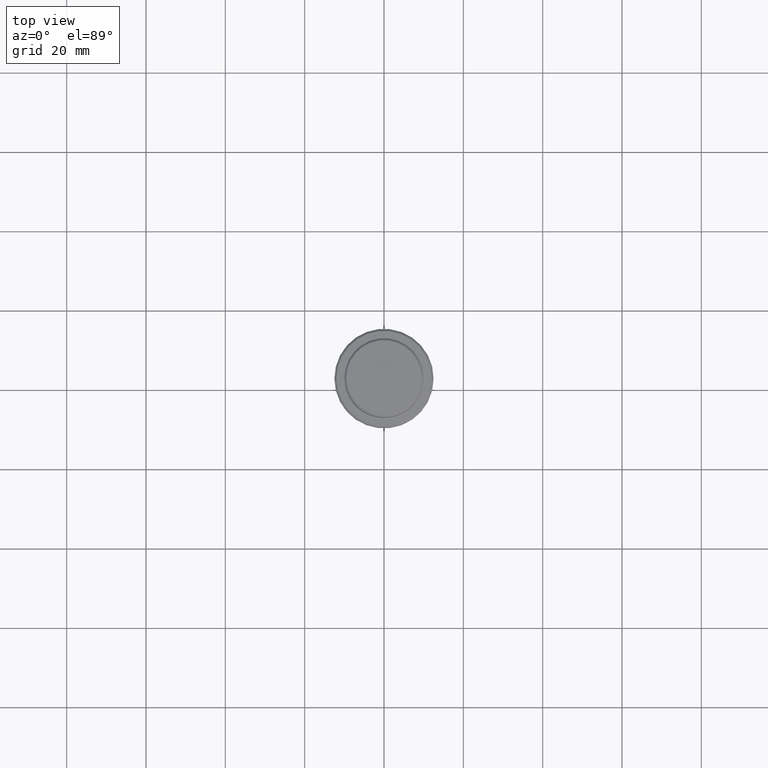
[diagram: clean part render]
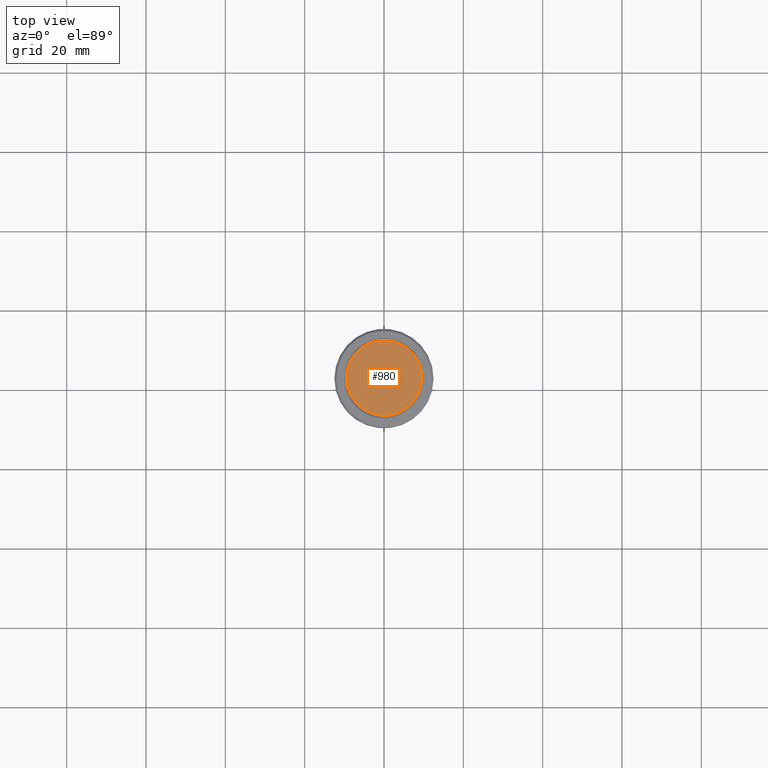
[diagram: same view with one face highlighted and labeled with its STEP entity id]
A machine part, top view. The second image highlights one B-rep face of the part: STEP entity #980.
In plain terms, the highlighted planar face has unit normal (0, -0, 1).
Its self-contained STEP definition (entity closure, byte-faithful):
#61 = DIRECTION ( 'NONE',  ( -0.000000000000000000, -0.000000000000000000, 1.000000000000000000 ) ) ;
#105 = DIRECTION ( 'NONE',  ( -0.000000000000000000, -0.000000000000000000, 1.000000000000000000 ) ) ;
#305 = CIRCLE ( 'NONE', #1083, 9.500000000000063949 ) ;
#317 = VERTEX_POINT ( 'NONE', #650 ) ;
#319 = DIRECTION ( 'NONE',  ( 0.000000000000000000, -0.000000000000000000, 1.000000000000000000 ) ) ;
#354 = DIRECTION ( 'NONE',  ( 1.000000000000000000, 0.000000000000000000, 0.000000000000000000 ) ) ;
#395 = AXIS2_PLACEMENT_3D ( 'NONE', #992, #319, #1190 ) ;
#537 = PLANE ( 'NONE',  #395 ) ;
#539 = ORIENTED_EDGE ( 'NONE', *, *, #921, .T. ) ;
#650 = CARTESIAN_POINT ( 'NONE',  ( 9.500000000000063949, 1.194030629168673217E-15, 0.000000000000000000 ) ) ;
#689 = CIRCLE ( 'NONE', #1392, 9.500000000000063949 ) ;
#757 = FACE_OUTER_BOUND ( 'NONE', #1053, .T. ) ;
#921 = EDGE_CURVE ( 'NONE', #317, #1178, #689, .T. ) ;
#967 = ORIENTED_EDGE ( 'NONE', *, *, #1395, .T. ) ;
#980 = ADVANCED_FACE ( 'NONE', ( #757 ), #537, .T. ) ;
#992 = CARTESIAN_POINT ( 'NONE',  ( 0.000000000000000000, 0.000000000000000000, 0.000000000000000000 ) ) ;
#1048 = CARTESIAN_POINT ( 'NONE',  ( 0.000000000000000000, 0.000000000000000000, 0.000000000000000000 ) ) ;
#1053 = EDGE_LOOP ( 'NONE', ( #967, #539 ) ) ;
#1083 = AXIS2_PLACEMENT_3D ( 'NONE', #1314, #105, #1189 ) ;
#1169 = CARTESIAN_POINT ( 'NONE',  ( -9.500000000000063949, 0.000000000000000000, 0.000000000000000000 ) ) ;
#1178 = VERTEX_POINT ( 'NONE', #1169 ) ;
#1189 = DIRECTION ( 'NONE',  ( 1.000000000000000000, 0.000000000000000000, 0.000000000000000000 ) ) ;
#1190 = DIRECTION ( 'NONE',  ( 1.000000000000000000, 0.000000000000000000, 0.000000000000000000 ) ) ;
#1314 = CARTESIAN_POINT ( 'NONE',  ( 0.000000000000000000, 0.000000000000000000, 0.000000000000000000 ) ) ;
#1392 = AXIS2_PLACEMENT_3D ( 'NONE', #1048, #61, #354 ) ;
#1395 = EDGE_CURVE ( 'NONE', #1178, #317, #305, .T. ) ;